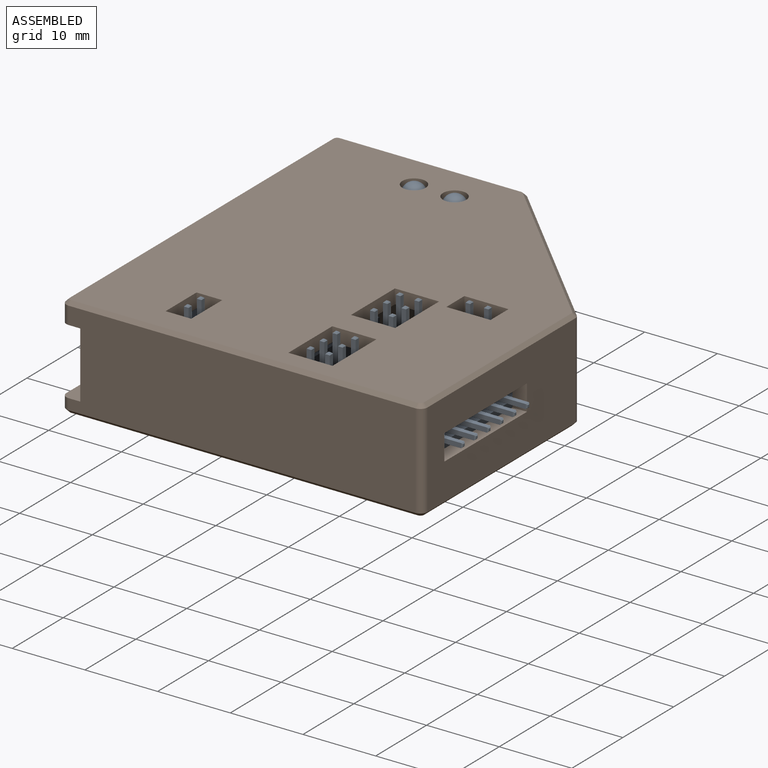
[diagram: assembled view]
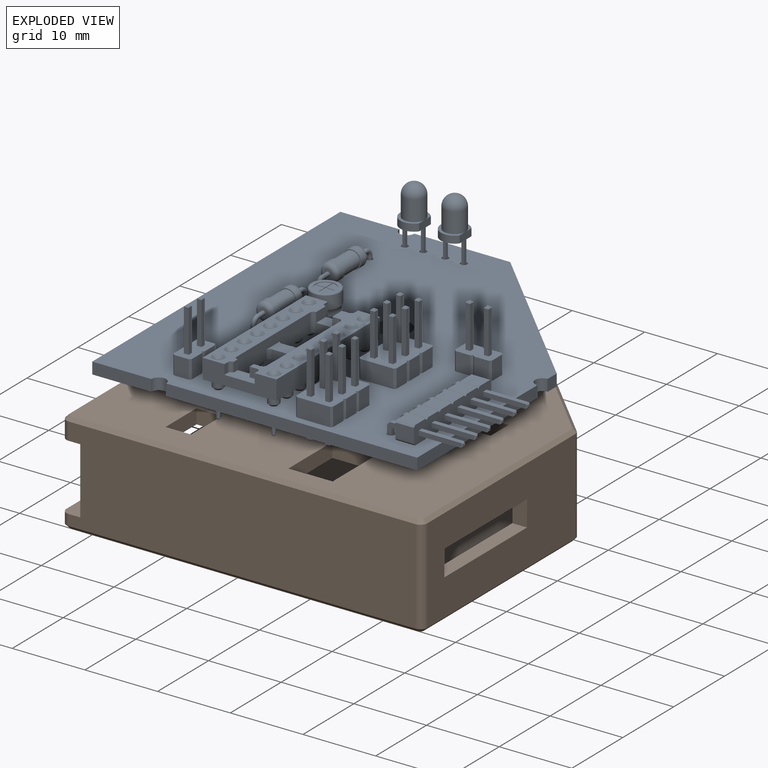
[diagram: exploded view]
GUIDED TOUR — FREECAD ASSEMBLY "uprs232ttl"

This assembly has 2 components, labeled P0..P1 below (a component is one placed body or linked part; the same part can appear more than once), held together by 0 modeled joints plus 1 derived contact edge. A joint is a constraint between two components; its type names the relative motion it leaves free:
  CONTACT — a derived adjacency edge — the two components touch in the source model (clearance under 2% of the assembly's diagonal); it is measured from the geometry, not a modeled constraint.
Axis/direction vectors are unit vectors and 'through' points are millimeter coordinates, both in the assembly's world frame.

MATES
  1. CONTACT "contact_0_1": P0 <-> P1, contact direction (0.000, 0.000, -1.000) through (23.79, 25.00, 0.00) mm (derived from contact, not a modeled constraint)

ASSEMBLY ORDER
  1. P0 — the base component [order heuristic]
  2. P1 [order heuristic]
Order-tag legend:
  [order heuristic] — this assembly is geometrically interlocked (no collision-free removal order exists), so components are listed in mate-graph order; insertion feasibility is not verified.

Of the 2 components, 1 carries a construction recipe — the FreeCAD feature program (sketches with constraints, then the solid features that consume them) that regenerates the part from scratch, quoted from this document or from the linked companion document it references; the rest are supplied as boundary geometry only. The tour below walks the components in assembly order: each is shown spotlighted twice — in the assembled view, then in the exploded view, where a leader line traces a displaced component back to its assembled socket (components that stay in place when exploded have no leader line; saturated green if recipe-attached, orange if geometry-only; every other component desaturated gray) — followed by its recipe or geometry summary and the mates that hold it.
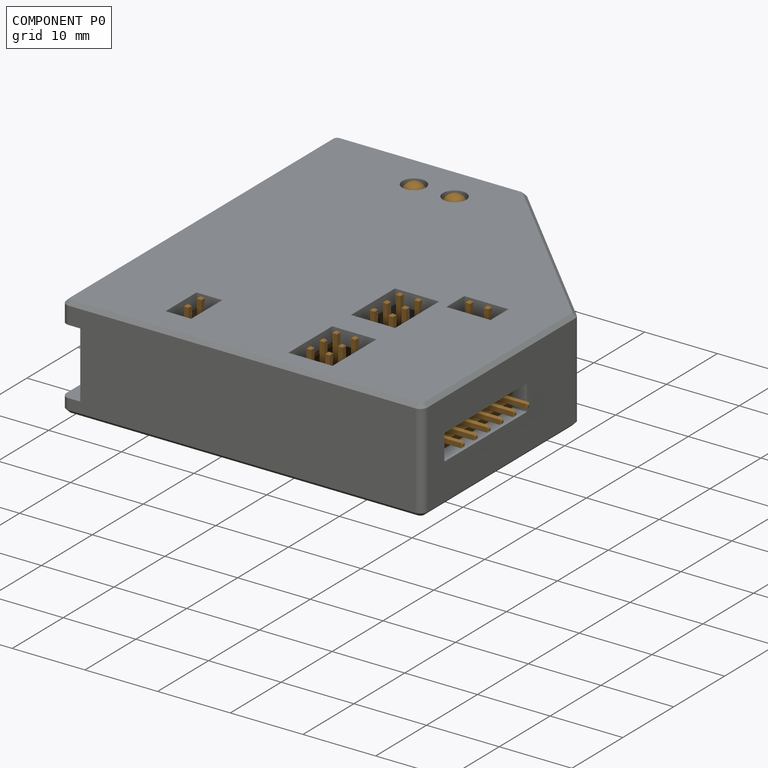
[diagram: component P0 — assembled]
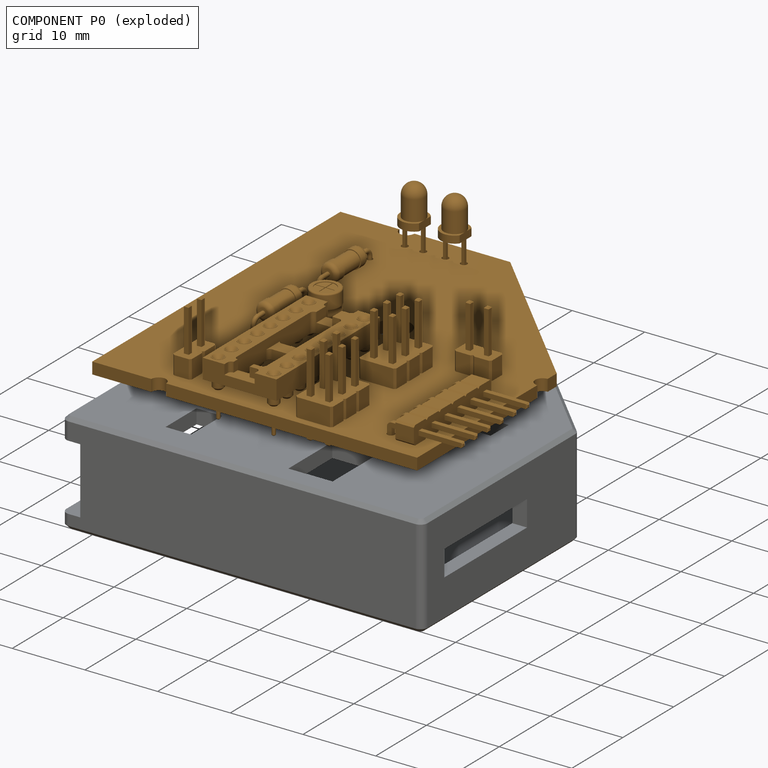
[diagram: component P0 — exploded]
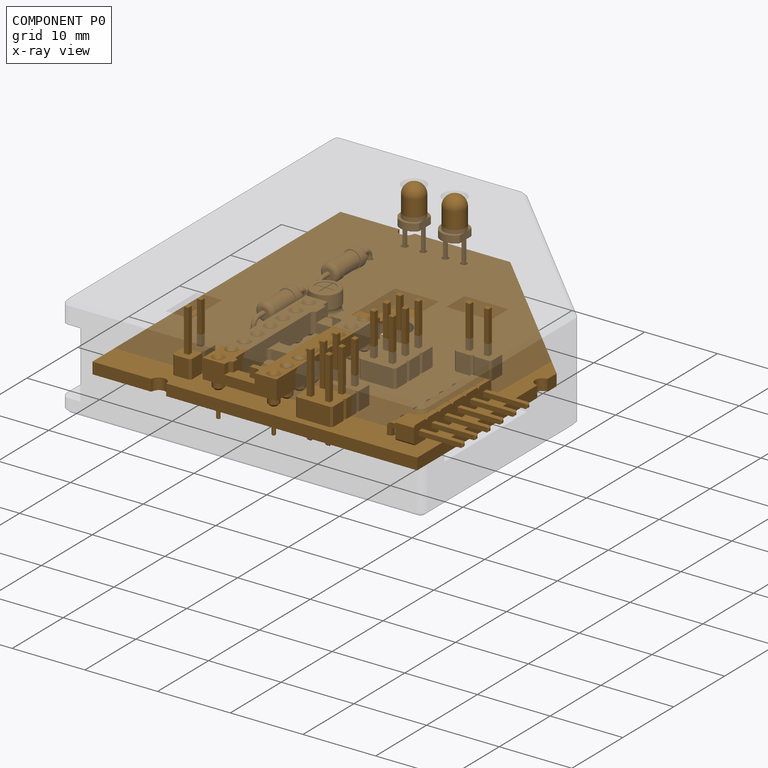
[diagram: component P0 — x-ray view]
COMPONENT P0 — geometry summary ("PCB"; no construction recipe available for this part):
  bounding box: 48.8 x 48.6 x 12.3 mm
  tessellated surface: 171,696 triangles
  volume: 3427 mm^3 (12% of its bounding box)
Held by: resting contact with P1 (derived edge).
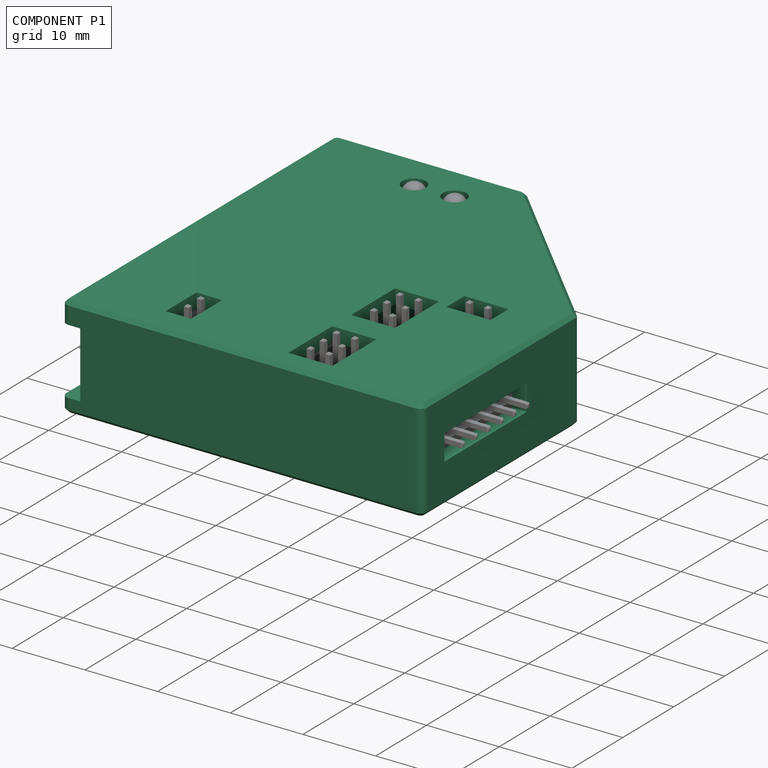
[diagram: component P1 — assembled]
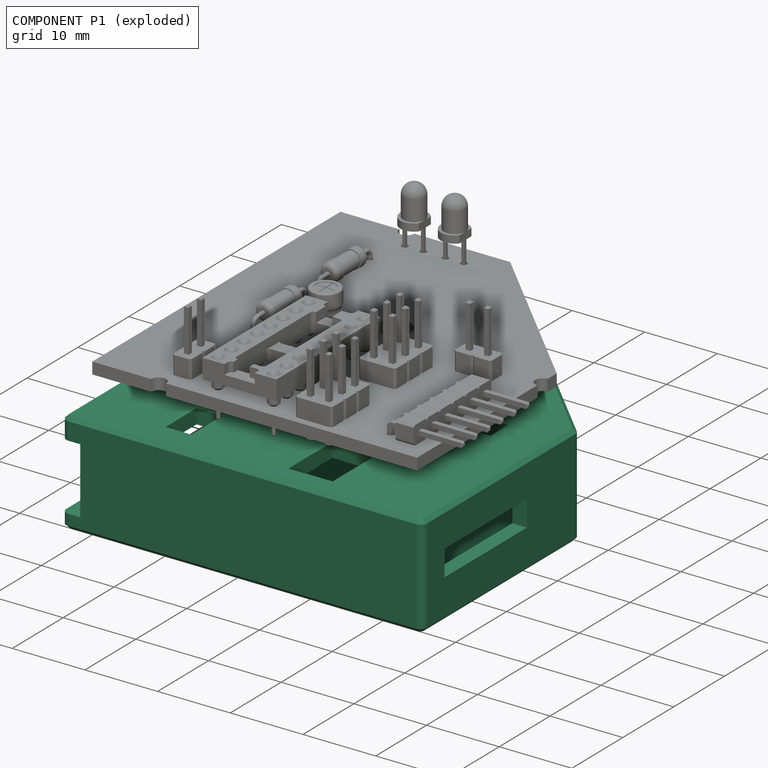
[diagram: component P1 — exploded]
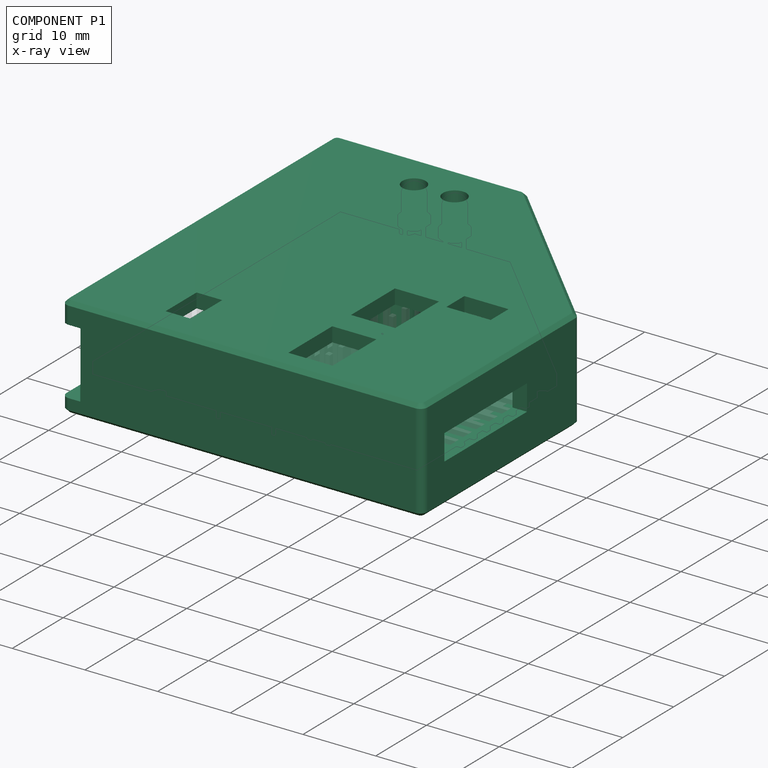
[diagram: component P1 — x-ray view]
COMPONENT P1 — recipe-attached ("Case", modeled in this document).
Held by: resting contact with P0 (derived edge).
Construction recipe (the document's own serialized feature program — sketch geometry with constraints, then the solid features built on it; lengths are millimeters unless a unit is written):

FEATURE [Sketcher::SketchObject] Sketch
  FullyConstrained = true
  MapMode = 5
  Support = -> [XY_Plane005]
  sketch-geometry (11):
    g0: LineSegment StartX=-0.5 StartY=49.1 StartZ=0 EndX=-0.5 EndY=-0.5 EndZ=0
    g1: LineSegment StartX=45.204 StartY=-0.5 StartZ=0 EndX=45.204 EndY=23.638 EndZ=0
    g2: LineSegment StartX=45.204 StartY=27.678 StartZ=0 EndX=23.614 EndY=49.1 EndZ=0
    g3: LineSegment StartX=23.614 StartY=49.1 StartZ=0 EndX=10.144 EndY=49.1 EndZ=0
    g4: ArcOfCircle CenterX=9.144 CenterY=-0.5 CenterZ=0 NormalX=0 NormalY=0 NormalZ=1 AngleXU=0 Radius=1 StartAngle=0 EndAngle=3.14159
    g5: ArcOfCircle CenterX=45.204 CenterY=24.638 CenterZ=0 NormalX=0 NormalY=0 NormalZ=1 AngleXU=0 Radius=1 StartAngle=1.5708 EndAngle=4.71239
    g6: ArcOfCircle CenterX=9.144 CenterY=49.1 CenterZ=0 NormalX=0 NormalY=0 NormalZ=1 AngleXU=0 Radius=1 StartAngle=3.14159 EndAngle=6.28319
    g7: LineSegment StartX=8.144 StartY=49.1 StartZ=0 EndX=-0.5 EndY=49.1 EndZ=0
    g8: LineSegment StartX=10.144 StartY=-0.5 StartZ=0 EndX=45.204 EndY=-0.5 EndZ=0
    g9: LineSegment StartX=45.204 StartY=25.638 StartZ=0 EndX=45.204 EndY=27.678 EndZ=0
    g10: LineSegment StartX=-0.5 StartY=-0.5 StartZ=0 EndX=8.144 EndY=-0.5 EndZ=0
  constraints (36):
    c: Vertical(g0)
    c: Coincident(g8,g1)
    c: Vertical(g1)
    c: Coincident(g9,g2)
    c: Coincident(g2,g3)
    c: Coincident(g7,g0)
    c: Horizontal(g3)
    c: DistanceY(g0,g-1) = 0.5
    c: DistanceX(g0,g-1) = 0.5
    c: Distance(g0) = 49.6
    c: Radius(g4) = 1
    c: DistanceX(g-1,g4) = 9.144
    c: PointOnObject(g5,g1)
    c: Radius(g5) = 1
    c: PointOnObject(g6,g3)
    c: Equal(g4,g6)
    c: DistanceX(g-1,g6) = 9.144
    c: Coincident(g3,g6)
    c: Coincident(g7,g6)
    c: Coincident(g8,g4)
    c: Coincident(g1,g5)
    c: Coincident(g9,g5)
    c: DistanceX(g6,g2) = 14.47
    c: Coincident(g10,g0)
    c: Coincident(g10,g4)
    c: Horizontal(g10)
    c: Horizontal(g4,g1)
    c: Horizontal(g4,g4)
    c: Vertical(g2,g5)
    c: Vertical(g5,g1)
    c: DistanceX(g4,g1) = 36.06
    c: DistanceY(g1,g5) = 25.138
    c: DistanceY(g5,g2) = 3.04
    c: Perpendicular(g6,g7)
    c: Perpendicular(g0,g7)
    c: Perpendicular(g4,g10)
FEATURE [PartDesign::Pad] Pad
  Direction = (0,0,1)
  Length = 6
  Length2 = 4
  Profile = -> Sketch
  ReferenceAxis = -> Sketch [N_Axis]
  Type = 4
FEATURE [PartDesign::Body] Body  label="Case_inner"
  Group = -> [Sketch,Pad]
  Origin = -> Origin005
  Tip = -> Pad
FEATURE [Sketcher::SketchObject] Sketch001
  FullyConstrained = true
  MapMode = 5
  Support = -> [XY_Plane006]
  sketch-geometry (5):
    g0: LineSegment StartX=-2.5 StartY=51.26 StartZ=0 EndX=-2.5 EndY=-2.5 EndZ=0
    g1: LineSegment StartX=-2.5 StartY=-2.5 StartZ=0 EndX=47.2 EndY=-2.5 EndZ=0
    g2: LineSegment StartX=47.2 StartY=-2.5 StartZ=0 EndX=47.2 EndY=27.93 EndZ=0
    g3: LineSegment StartX=47.2 StartY=27.93 StartZ=0 EndX=23.87 EndY=51.26 EndZ=0
    g4: LineSegment StartX=23.87 StartY=51.26 StartZ=0 EndX=-2.5 EndY=51.26 EndZ=0
  constraints (15):
    c: Vertical(g0)
    c: Coincident(g0,g1)
    c: Horizontal(g1)
    c: Coincident(g1,g2)
    c: Vertical(g2)
    c: Coincident(g2,g3)
    c: Coincident(g3,g4)
    c: Coincident(g4,g0)
    c: DistanceX(g0,g-1) = 2.5
    c: DistanceY(g0,g-1) = 2.5
    c: DistanceX(g1,g1) = 49.7
    c: Distance(g0) = 53.76
    c: Perpendicular(g4,g0)
    c: Distance(g2) = 30.43
    c: DistanceX(g4,g4) = 26.37
FEATURE [PartDesign::Pad] Pad001
  Direction = (0,0,1)
  Length = 8
  Length2 = 6
  Profile = -> Sketch001
  ReferenceAxis = -> Sketch001 [N_Axis]
  Type = 4
FEATURE [Sketcher::SketchObject] Sketch002
  FullyConstrained = true
  MapMode = 5
  Placement = pos=(42.648,16.256,0) rot=(0.57735,0.57735,0.57735;2.0944rad)
  sketch-geometry (4):
    g0: LineSegment StartX=-14.47 StartY=3.04 StartZ=0 EndX=1.77 EndY=3.04 EndZ=0
    g1: LineSegment StartX=1.77 StartY=3.04 StartZ=0 EndX=1.77 EndY=-0.5 EndZ=0
    g2: LineSegment StartX=1.77 StartY=-0.5 StartZ=0 EndX=-14.47 EndY=-0.5 EndZ=0
    g3: LineSegment StartX=-14.47 StartY=-0.5 StartZ=0 EndX=-14.47 EndY=3.04 EndZ=0
  constraints (12):
    c: Coincident(g0,g1)
    c: Coincident(g1,g2)
    c: Coincident(g2,g3)
    c: Coincident(g3,g0)
    c: Horizontal(g0)
    c: Horizontal(g2)
    c: Vertical(g1)
    c: Vertical(g3)
    c: DistanceY(g1,g1) = 3.54
    c: DistanceX(g0,g0) = 16.24
    c: Distance(g-1,g0) = 3.04
    c: DistanceX(g-2,g0) = 1.77
FEATURE [PartDesign::Pad] Pad002
  Direction = (1,0,0)
  Length = 10
  Length2 = 10
  Placement = pos=(42.648,16.256,0) rot=(0.57735,0.57735,0.57735;2.0944rad)
  Profile = -> Sketch002
  ReferenceAxis = -> Sketch002 [N_Axis]
  Refine = true
  Type = 0
FEATURE [PartDesign::Body] Body002  label="Serial_Header"
  Group = -> [Sketch002,Pad002]
  Origin = -> Origin007
  Tip = -> Pad002
FEATURE [PartDesign::Fillet] Fillet
  Base = -> Pad001 [Edge11,Edge8,Edge1,Edge2,Edge5]
  BaseFeature = -> Pad001
  Radius = 1
  SupportTransform = false
  UseAllEdges = false
FEATURE [PartDesign::Chamfer] Chamfer
  Angle = 45
  Base = -> Fillet [Face5]
  BaseFeature = -> Fillet
  ChamferType = 0
  FlipDirection = false
  Size = 0.5
  Size2 = 1
  SupportTransform = false
  UseAllEdges = false
FEATURE [PartDesign::Chamfer] Chamfer001
  Angle = 45
  Base = -> Chamfer [Face4]
  BaseFeature = -> Chamfer
  ChamferType = 0
  FlipDirection = false
  Size = 0.5
  Size2 = 1
  SupportTransform = false
  UseAllEdges = false
FEATURE [PartDesign::Body] Body001  label="Case_Outer"
  Group = -> [Sketch001,Pad001,Fillet,Chamfer,Chamfer001]
  Origin = -> Origin006
  Tip = -> Chamfer001
FEATURE [Sketcher::SketchObject] Sketch004
  FullyConstrained = true
  MapMode = 5
  Placement = pos=(0,0,0) rot=(0.57735,0.57735,0.57735;2.0944rad)
  Support = -> [YZ_Plane004]
  sketch-geometry (4):
    g0: LineSegment StartX=70 StartY=5.1 StartZ=0 EndX=-20 EndY=5.1 EndZ=0
    g1: LineSegment StartX=-20 StartY=5.1 StartZ=0 EndX=-20 EndY=-4 EndZ=0
    g2: LineSegment StartX=-20 StartY=-4 StartZ=0 EndX=70 EndY=-4 EndZ=0
    g3: LineSegment StartX=70 StartY=-4 StartZ=0 EndX=70 EndY=5.1 EndZ=0
  constraints (12):
    c: Coincident(g0,g1)
    c: Coincident(g1,g2)
    c: Coincident(g2,g3)
    c: Coincident(g3,g0)
    c: Horizontal(g0)
    c: Horizontal(g2)
    c: Vertical(g1)
    c: Vertical(g3)
    c: DistanceY(g1,g1) = 9.1
    c: DistanceX(g0,g0) = 90
    c: DistanceX(g1,g-1) = 20
    c: DistanceY(g1,g-1) = 4
FEATURE [PartDesign::Pad] Pad003
  Direction = (1,-2e-16,3e-16)
  Length = 10
  Length2 = 0.1
  Placement = pos=(0,0,0) rot=(1,1,1;2.0944rad)
  Profile = -> Sketch004
  ReferenceAxis = -> Sketch004 [N_Axis]
  Reversed = true
  Type = 4
FEATURE [Sketcher::SketchObject] Sketch005
  FullyConstrained = true
  MapMode = 5
  Support = -> [XY_Plane]
  sketch-geometry (7):
    g0: ArcOfCircle CenterX=9.13 CenterY=48.92 CenterZ=0 NormalX=0 NormalY=0 NormalZ=1 AngleXU=0 Radius=2 StartAngle=2.90653 EndAngle=6.51825
    g1: ArcOfCircle CenterX=44.9 CenterY=24.67 CenterZ=0 NormalX=0 NormalY=0 NormalZ=1 AngleXU=0 Radius=2 StartAngle=1.33573 EndAngle=4.94745
    g2: ArcOfCircle CenterX=9.13 CenterY=0 CenterZ=0 NormalX=0 NormalY=0 NormalZ=1 AngleXU=0 Radius=2 StartAngle=6.04812 EndAngle=9.65984
    g3: LineSegment StartX=7.185 StartY=-0.465806 StartZ=0 EndX=11.075 EndY=-0.465806 EndZ=0
    g4: LineSegment StartX=45.3658 StartY=26.615 StartZ=0 EndX=45.3658 EndY=22.725 EndZ=0
    g5: LineSegment StartX=7.185 StartY=49.3858 StartZ=0 EndX=11.075 EndY=49.3858 EndZ=0
    g6: Circle CenterX=22.68 CenterY=26.92 CenterZ=0 NormalX=0 NormalY=0 NormalZ=1 AngleXU=0 Radius=3.5
  constraints (24):
    c: Equal(g0,g1)
    c: Equal(g1,g2)
    c: Radius(g2) = 2
    c: Horizontal(g3)
    c: Coincident(g2,g3)
    c: Coincident(g2,g3)
    c: Vertical(g4)
    c: Coincident(g1,g4)
    c: Coincident(g1,g4)
    c: Horizontal(g5)
    c: Coincident(g0,g5)
    c: Coincident(g0,g5)
    c: Equal(g3,g4)
    c: Equal(g4,g5)
    c: Distance(g3) = 3.89
    c: DistanceX(g-1,g2) = 9.13
    c: DistanceX(g-1,g0) = 9.13
    c: DistanceY(g-1,g0) = 48.92
    c: DistanceY(g-1,g1) = 24.67
    c: DistanceX(g-1,g1) = 44.9
    c: DistanceX(g-1,g6) = 22.68
    c: DistanceY(g-1,g6) = 26.92
    c: Radius(g6) = 3.5
    c: DistanceY(g2,g-1) = 0
FEATURE [PartDesign::Body] Body003  label="CardConnectorCutOut"
  Group = -> [Sketch004,Pad003,Sketch005]
  Origin = -> Origin
  Tip = -> Pad003
FEATURE [Sketcher::SketchObject] Sketch009
  FullyConstrained = true
  MapMode = 5
  Support = -> [XY_Plane014]
  sketch-geometry (2):
    g0: ArcOfCircle CenterX=9.15 CenterY=0 CenterZ=0 NormalX=0 NormalY=0 NormalZ=1 AngleXU=0 Radius=2 StartAngle=6.02754 EndAngle=9.68042
    g1: LineSegment StartX=7.215 StartY=-0.505742 StartZ=0 EndX=11.085 EndY=-0.505742 EndZ=0
  constraints (7):
    c: Radius(g0) = 2
    c: DistanceY(g0,g-1) = 0
    c: DistanceX(g-1,g0) = 9.15
    c: Horizontal(g1)
    c: Coincident(g0,g1)
    c: Coincident(g0,g1)
    c: DistanceX(g1,g1) = 3.87
FEATURE [PartDesign::Pad] Pad005
  Direction = (0,0,1)
  Length = 4
  Length2 = -1.6
  Profile = -> Sketch009
  ReferenceAxis = -> Sketch009 [N_Axis]
  Reversed = true
  Type = 4
FEATURE [PartDesign::Body] Body004  label="BoardStand1"
  Group = -> [Sketch009,Pad005]
  Origin = -> Origin013
  Tip = -> Pad005
FEATURE [Sketcher::SketchObject] Sketch010
  FullyConstrained = true
  MapMode = 5
  Support = -> [XY_Plane016]
  sketch-geometry (2):
    g0: ArcOfCircle CenterX=45.22 CenterY=24.64 CenterZ=0 NormalX=0 NormalY=0 NormalZ=1 AngleXU=0 Radius=2 StartAngle=1.50007 EndAngle=4.78311
    g1: LineSegment StartX=45.3613 StartY=26.635 StartZ=0 EndX=45.3613 EndY=22.645 EndZ=0
  constraints (7):
    c: Radius(g0) = 2
    c: Vertical(g1)
    c: Coincident(g0,g1)
    c: Coincident(g0,g1)
    c: DistanceY(g1,g1) = 3.99
    c: DistanceY(g-1,g0) = 24.64
    c: DistanceX(g-1,g0) = 45.22
FEATURE [PartDesign::Pad] Pad006
  Direction = (0,0,1)
  Length = 4
  Length2 = -1.6
  Profile = -> Sketch010
  ReferenceAxis = -> Sketch010 [N_Axis]
  Reversed = true
  Type = 4
FEATURE [PartDesign::Body] Body005  label="BoardStand2"
  Group = -> [Sketch010,Pad006]
  Origin = -> Origin014
  Tip = -> Pad006
FEATURE [Sketcher::SketchObject] Sketch011
  FullyConstrained = true
  MapMode = 5
  Support = -> [XY_Plane017]
  sketch-geometry (2):
    g0: ArcOfCircle CenterX=9.14 CenterY=49.09 CenterZ=0 NormalX=0 NormalY=0 NormalZ=1 AngleXU=0 Radius=2 StartAngle=3.00005 EndAngle=6.42472
    g1: LineSegment StartX=7.16 StartY=49.3721 StartZ=0 EndX=11.12 EndY=49.3721 EndZ=0
  constraints (7):
    c: Radius(g0) = 2
    c: Horizontal(g1)
    c: DistanceX(g1,g1) = 3.96
    c: Coincident(g0,g1)
    c: Coincident(g0,g1)
    c: DistanceX(g-1,g0) = 9.14
    c: DistanceY(g-1,g0) = 49.09
FEATURE [PartDesign::Pad] Pad007
  Direction = (0,0,1)
  Length = 4
  Length2 = -1.6
  Profile = -> Sketch011
  ReferenceAxis = -> Sketch011 [N_Axis]
  Reversed = true
  Type = 4
FEATURE [PartDesign::Body] Body006  label="BoardStand3"
  Group = -> [Sketch011,Pad007]
  Origin = -> Origin015
  Tip = -> Pad007
FEATURE [Sketcher::SketchObject] Sketch012
  FullyConstrained = true
  MapMode = 5
  Support = -> [XY_Plane018]
  sketch-geometry (1):
    g0: Circle CenterX=22.69 CenterY=26.91 CenterZ=0 NormalX=0 NormalY=0 NormalZ=1 AngleXU=0 Radius=3.5
  constraints (3):
    c: Radius(g0) = 3.5
    c: DistanceY(g-1,g0) = 26.91
    c: DistanceX(g-1,g0) = 22.69
FEATURE [PartDesign::Pad] Pad008
  Direction = (0,0,1)
  Length = 4
  Length2 = -1.6
  Profile = -> Sketch012
  ReferenceAxis = -> Sketch012 [N_Axis]
  Reversed = true
  Type = 4
FEATURE [PartDesign::Body] Body007  label="BoardStandCenterBottom"
  Group = -> [Sketch012,Pad008]
  Origin = -> Origin016
  Tip = -> Pad008
FEATURE [Sketcher::SketchObject] Sketch013
  FullyConstrained = true
  MapMode = 5
  Support = -> [XY_Plane019]
  sketch-geometry (1):
    g0: Circle CenterX=22.68 CenterY=26.92 CenterZ=0 NormalX=0 NormalY=0 NormalZ=1 AngleXU=0 Radius=2.2
  constraints (3):
    c: Radius(g0) = 2.2
    c: DistanceY(g-1,g0) = 26.92
    c: DistanceX(g-1,g0) = 22.68
FEATURE [PartDesign::Pad] Pad009
  Direction = (0,0,1)
  Length = 5
  Length2 = 3
  Profile = -> Sketch013
  ReferenceAxis = -> Sketch013 [N_Axis]
  Type = 4
FEATURE [PartDesign::Body] Body008  label="BoardStandCenterPCB"
  Group = -> [Sketch013,Pad009]
  Origin = -> Origin017
  Tip = -> Pad009
FEATURE [Sketcher::SketchObject] Sketch014
  FullyConstrained = true
  MapMode = 5
  Support = -> [XY_Plane020]
  sketch-geometry (1):
    g0: Circle CenterX=22.67 CenterY=26.92 CenterZ=0 NormalX=0 NormalY=0 NormalZ=1 AngleXU=0 Radius=3
  constraints (3):
    c: Radius(g0) = 3
    c: DistanceX(g-1,g0) = 22.67
    c: DistanceY(g-1,g0) = 26.92
FEATURE [PartDesign::Pad] Pad010
  Direction = (0,0,1)
  Length = 6
  Length2 = 0
  Profile = -> Sketch014
  ReferenceAxis = -> Sketch014 [N_Axis]
  Type = 4
FEATURE [PartDesign::Body] Body009  label="BoardCenterTop"
  Group = -> [Sketch014,Pad010]
  Origin = -> Origin018
  Tip = -> Pad010
FEATURE [Sketcher::SketchObject] Sketch015
  FullyConstrained = true
  MapMode = 5
  Support = -> [XY_Plane021]
  sketch-geometry (1):
    g0: Circle CenterX=22.67 CenterY=26.9 CenterZ=0 NormalX=0 NormalY=0 NormalZ=1 AngleXU=0 Radius=0.8
  constraints (3):
    c: Radius(g0) = 0.8
    c: DistanceX(g-1,g0) = 22.67
    c: DistanceY(g-1,g0) = 26.9
FEATURE [Sketcher::SketchObject] Sketch016
  FullyConstrained = true
  MapMode = 5
  Support = -> [XY_Plane022]
  sketch-geometry (1):
    g0: Circle CenterX=22.71 CenterY=26.91 CenterZ=0 NormalX=0 NormalY=0 NormalZ=1 AngleXU=0 Radius=2
  constraints (3):
    c: Radius(g0) = 2
    c: DistanceX(g-1,g0) = 22.71
    c: DistanceY(g-1,g0) = 26.91
FEATURE [PartDesign::Pad] Pad011
  Direction = (0,0,1)
  Length = 6
  Length2 = 7
  Profile = -> Sketch015
  ReferenceAxis = -> Sketch015 [N_Axis]
  Type = 4
FEATURE [PartDesign::Body] Body010  label="ScrewHole"
  Group = -> [Sketch015,Pad011]
  Origin = -> Origin019
  Tip = -> Pad011
FEATURE [PartDesign::Pad] Pad012
  Direction = (0,0,1)
  Length = 7
  Length2 = -3.5
  Profile = -> Sketch016
  ReferenceAxis = -> Sketch016 [N_Axis]
  Reversed = true
  Type = 4
FEATURE [PartDesign::Body] Body011  label="ScrewFlange"
  Group = -> [Sketch016,Pad012]
  Origin = -> Origin020
  Tip = -> Pad012
PROVENANCE & LICENSES
Assembly and component geometry: a FreeCAD (.FCStd) document from a public repository crawl; components, placements and joints were extracted with FreeCAD and each solid tessellated.
Construction recipes: the document's own serialized feature recipes (and, for linked parts, the recipes of companion documents from the same project).
License: mit.
Joints: native FreeCAD joints and A2plus constraints are mapped to standard mate types; edges marked 'derived from contact' connect touching components and are measured from the geometry, not modeled.
Verification: 1 of this assembly's 2 components carries a construction recipe (1 from this document itself); the rest are geometry-only. Every component's tessellation passed the extraction mesh gates (mesh-volume checksum against the B-rep where available, bounding-box inflation <= 2%).
Renders: orthographic iso camera (az 35 / el 25); the floor grid conveys scale (grid pitch printed in each image; no ruler). In the exploded view each component is displaced by its stored offset vector: the offsets alone carry the explosion direction (mate normal/axis signs are not orientation cues and do not encode it), and separation distances are assigned per mate-chain, not proportionally to assembly-order depth.
